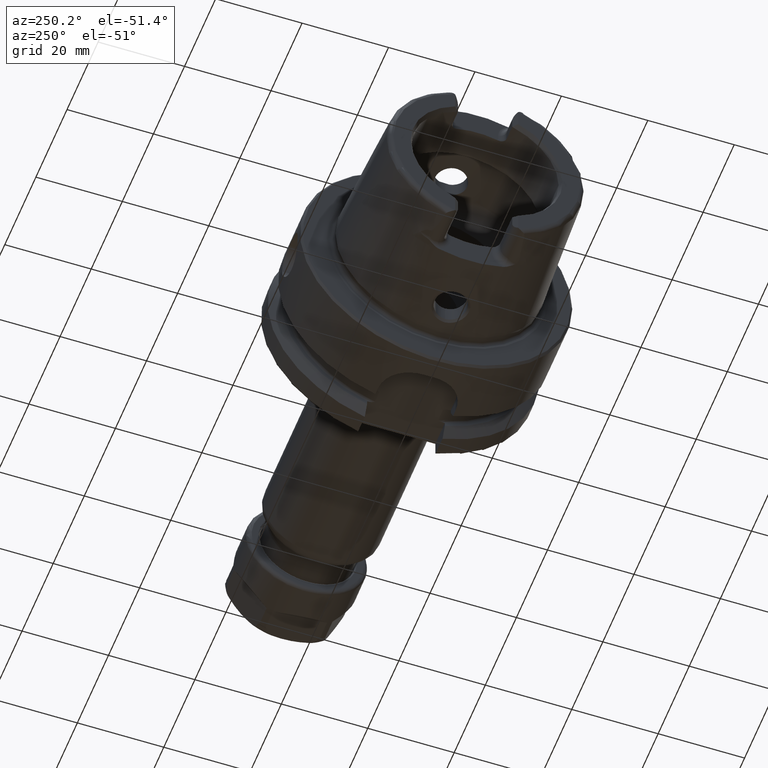
[diagram: clean part render]
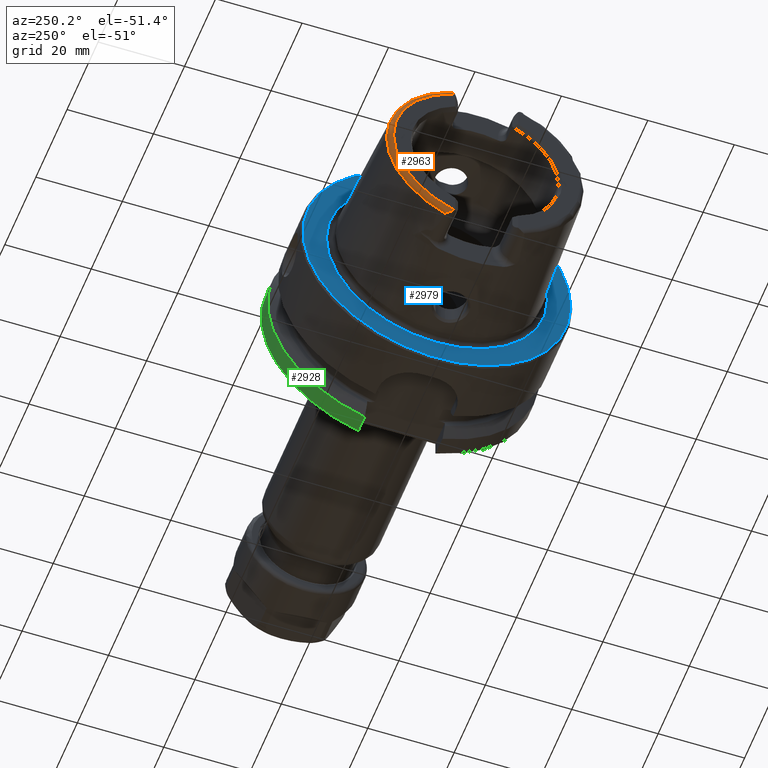
[diagram: same view with three faces highlighted in distinct colors, each labeled with its STEP entity id]
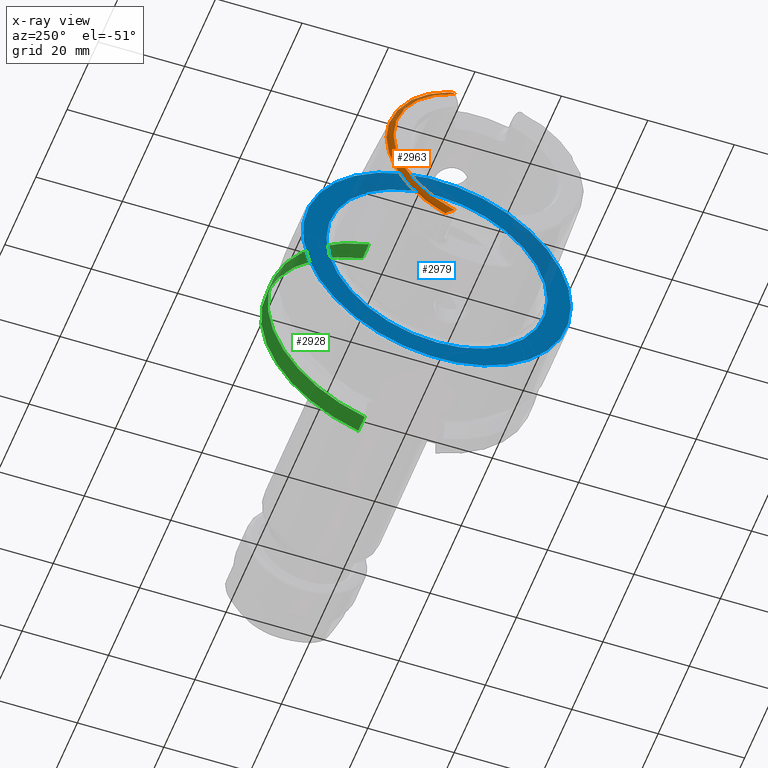
[diagram: x-ray of the same camera — body ghosted, the three highlighted faces saturated]
A machine part, auxiliary view with three faces highlighted in distinct colors.
The next image is the same camera in x-ray (body ghosted, the three faces saturated) — at least one of them is partly hidden behind the body in this view.
Their STEP definitions:

[orange] entity #2963 — the highlighted toroidal blend (fillet) surface has major radius 21.576 mm and minor (blend) radius 1.2 mm.
#64=B_SPLINE_CURVE_WITH_KNOTS('',3,(#4575,#4576,#4577,#4578,#4579,#4580,
#4581,#4582,#4583,#4584,#4585,#4586),.UNSPECIFIED.,.F.,.F.,(4,2,2,2,2,4),
(-0.439971245205478,-0.413787817992068,-0.386870723320619,-0.314205730694733,
-0.242063220501312,-0.191373987051965),.UNSPECIFIED.);
#69=B_SPLINE_CURVE_WITH_KNOTS('',3,(#4676,#4677,#4678,#4679,#4680,#4681,
#4682,#4683,#4684,#4685,#4686,#4687),.UNSPECIFIED.,.F.,.F.,(4,2,2,2,2,4),
(-0.196594494202377,-0.162015792380097,-0.0987584756003746,-0.0492121500493367,
-0.0201918504309682,-3.59409225206588E-5),.UNSPECIFIED.);
#238=TOROIDAL_SURFACE('',#3321,21.5760400159857,1.2);
#401=FACE_OUTER_BOUND('',#579,.T.);
#579=EDGE_LOOP('',(#2475,#2476,#2477,#2478));
#1012=CIRCLE('',#3188,22.7745368271334);
#1077=CIRCLE('',#3320,21.5760400159857);
#1208=VERTEX_POINT('',#4572);
#1209=VERTEX_POINT('',#4574);
#1228=VERTEX_POINT('',#4666);
#1229=VERTEX_POINT('',#4675);
#1526=EDGE_CURVE('',#1209,#1208,#64,.T.);
#1549=EDGE_CURVE('',#1229,#1228,#69,.T.);
#1567=EDGE_CURVE('',#1209,#1228,#1012,.T.);
#1746=EDGE_CURVE('',#1208,#1229,#1077,.T.);
#2475=ORIENTED_EDGE('',*,*,#1549,.T.);
#2476=ORIENTED_EDGE('',*,*,#1567,.F.);
#2477=ORIENTED_EDGE('',*,*,#1526,.T.);
#2478=ORIENTED_EDGE('',*,*,#1746,.T.);
#2963=ADVANCED_FACE('',(#401),#238,.T.);
#3188=AXIS2_PLACEMENT_3D('',#4904,#3700,#3701);
#3320=AXIS2_PLACEMENT_3D('',#5806,#4023,#4024);
#3321=AXIS2_PLACEMENT_3D('',#5807,#4025,#4026);
#3700=DIRECTION('center_axis',(1.,0.,0.));
#3701=DIRECTION('ref_axis',(0.,0.,-1.));
#4023=DIRECTION('center_axis',(1.,0.,0.));
#4024=DIRECTION('ref_axis',(0.,0.,-1.));
#4025=DIRECTION('center_axis',(1.,0.,0.));
#4026=DIRECTION('ref_axis',(0.,0.,-1.));
#4572=CARTESIAN_POINT('',(-32.,7.39118810947246,-20.2705658801576));
#4574=CARTESIAN_POINT('',(-30.8600449304182,9.1175788960984,-20.8698175067219));
#4575=CARTESIAN_POINT('Ctrl Pts',(-30.8600449304182,9.11757889609839,-20.8698175067219));
#4576=CARTESIAN_POINT('Ctrl Pts',(-30.9283482575805,9.10924589065498,-20.869723693404));
#4577=CARTESIAN_POINT('Ctrl Pts',(-30.993271833442,9.08711423752726,-20.869481166787));
#4578=CARTESIAN_POINT('Ctrl Pts',(-31.1175295394099,9.02410248673809,-20.8674243938042));
#4579=CARTESIAN_POINT('Ctrl Pts',(-31.1766323882079,8.98273168347476,-20.8654949507798));
#4580=CARTESIAN_POINT('Ctrl Pts',(-31.3771588963276,8.81568608992481,-20.853140478981));
#4581=CARTESIAN_POINT('Ctrl Pts',(-31.5206715121349,8.63879728066883,-20.8319176028095));
#4582=CARTESIAN_POINT('Ctrl Pts',(-31.7691415784724,8.23645855855542,-20.7290954164696));
#4583=CARTESIAN_POINT('Ctrl Pts',(-31.8687101576321,8.02133155327414,-20.6499424381211));
#4584=CARTESIAN_POINT('Ctrl Pts',(-31.9745830679216,7.66828298917771,-20.4650680358065));
#4585=CARTESIAN_POINT('Ctrl Pts',(-32.,7.52538170482901,-20.3740583042087));
#4586=CARTESIAN_POINT('Ctrl Pts',(-32.,7.39118810947247,-20.2705658801576));
#4666=CARTESIAN_POINT('',(-30.8600449304182,9.1175788960984,20.8698175067219));
#4675=CARTESIAN_POINT('',(-32.,7.39118810947246,20.2705658801576));
#4676=CARTESIAN_POINT('Ctrl Pts',(-32.,7.39118810947247,20.2705658801576));
#4677=CARTESIAN_POINT('Ctrl Pts',(-32.,7.5108721598535,20.3628682919178));
#4678=CARTESIAN_POINT('Ctrl Pts',(-31.9797330717779,7.63776168900947,20.4454948383081));
#4679=CARTESIAN_POINT('Ctrl Pts',(-31.8791506793963,8.00524977105305,20.646558514632));
#4680=CARTESIAN_POINT('Ctrl Pts',(-31.765597681806,8.24658605272637,20.7334672105939));
#4681=CARTESIAN_POINT('Ctrl Pts',(-31.5253369252513,8.62735746584638,20.8274140198604));
#4682=CARTESIAN_POINT('Ctrl Pts',(-31.4073954734027,8.77570244905025,20.847801807847));
#4683=CARTESIAN_POINT('Ctrl Pts',(-31.2163518404642,8.95387229883953,20.8640739602076));
#4684=CARTESIAN_POINT('Ctrl Pts',(-31.1366672867121,9.0150934584885,20.867161983441));
#4685=CARTESIAN_POINT('Ctrl Pts',(-30.990207154745,9.08815496121785,20.8694917701067));
#4686=CARTESIAN_POINT('Ctrl Pts',(-30.9267310903117,9.10944318505063,20.8697259145524));
#4687=CARTESIAN_POINT('Ctrl Pts',(-30.8600449304182,9.11757889609838,20.8698175067219));
#4904=CARTESIAN_POINT('Origin',(-30.8600449304182,0.,0.));
#5806=CARTESIAN_POINT('Origin',(-32.,0.,0.));
#5807=CARTESIAN_POINT('Origin',(-30.8,0.,0.));

[blue] entity #2979 — the highlighted planar face has unit normal (-1, 0, 0).
#156=FACE_BOUND('',#599,.T.);
#201=PLANE('',#3356);
#417=FACE_OUTER_BOUND('',#598,.T.);
#598=EDGE_LOOP('',(#2546));
#599=EDGE_LOOP('',(#2547));
#1096=CIRCLE('',#3355,25.5879092835167);
#1097=CIRCLE('',#3357,31.);
#1360=VERTEX_POINT('',#5858);
#1361=VERTEX_POINT('',#5862);
#1770=EDGE_CURVE('',#1360,#1360,#1096,.T.);
#1771=EDGE_CURVE('',#1361,#1361,#1097,.T.);
#2546=ORIENTED_EDGE('',*,*,#1771,.F.);
#2547=ORIENTED_EDGE('',*,*,#1770,.T.);
#2979=ADVANCED_FACE('',(#417,#156),#201,.T.);
#3355=AXIS2_PLACEMENT_3D('',#5860,#4098,#4099);
#3356=AXIS2_PLACEMENT_3D('',#5861,#4100,#4101);
#3357=AXIS2_PLACEMENT_3D('',#5863,#4102,#4103);
#4098=DIRECTION('center_axis',(1.,0.,0.));
#4099=DIRECTION('ref_axis',(0.,0.,-1.));
#4100=DIRECTION('center_axis',(-1.,0.,0.));
#4101=DIRECTION('ref_axis',(0.,0.,1.));
#4102=DIRECTION('center_axis',(1.,0.,0.));
#4103=DIRECTION('ref_axis',(0.,0.,-1.));
#5858=CARTESIAN_POINT('',(-3.55618312575245E-16,-25.5879092835167,-3.13361512009315E-15));
#5860=CARTESIAN_POINT('Origin',(0.,0.,0.));
#5861=CARTESIAN_POINT('Origin',(0.,31.,0.));
#5862=CARTESIAN_POINT('',(-5.89805981832114E-16,-31.,-3.7964050773568E-15));
#5863=CARTESIAN_POINT('Origin',(0.,0.,0.));

[green] entity #2928 — the highlighted cylindrical surface (partial cylindrical patch) has radius 31.5 mm, axis along (1, 0, 0).
#271=CYLINDRICAL_SURFACE('',#3256,31.5);
#366=FACE_OUTER_BOUND('',#543,.T.);
#543=EDGE_LOOP('',(#2281,#2282,#2283,#2284));
#726=LINE('',#5425,#879);
#740=LINE('',#5605,#893);
#879=VECTOR('',#3817,10.);
#893=VECTOR('',#3879,10.);
#1046=CIRCLE('',#3253,31.5);
#1048=CIRCLE('',#3257,31.5);
#1293=VERTEX_POINT('',#5401);
#1297=VERTEX_POINT('',#5421);
#1322=VERTEX_POINT('',#5588);
#1323=VERTEX_POINT('',#5603);
#1647=EDGE_CURVE('',#1293,#1297,#726,.T.);
#1683=EDGE_CURVE('',#1293,#1322,#1046,.T.);
#1686=EDGE_CURVE('',#1297,#1323,#1048,.T.);
#1687=EDGE_CURVE('',#1323,#1322,#740,.T.);
#2281=ORIENTED_EDGE('',*,*,#1647,.T.);
#2282=ORIENTED_EDGE('',*,*,#1686,.T.);
#2283=ORIENTED_EDGE('',*,*,#1687,.T.);
#2284=ORIENTED_EDGE('',*,*,#1683,.F.);
#2928=ADVANCED_FACE('',(#366),#271,.T.);
#3253=AXIS2_PLACEMENT_3D('',#5589,#3869,#3870);
#3256=AXIS2_PLACEMENT_3D('',#5602,#3875,#3876);
#3257=AXIS2_PLACEMENT_3D('',#5604,#3877,#3878);
#3817=DIRECTION('',(-1.,0.,0.));
#3869=DIRECTION('center_axis',(1.,0.,0.));
#3870=DIRECTION('ref_axis',(0.,0.,-1.));
#3875=DIRECTION('center_axis',(1.,0.,0.));
#3876=DIRECTION('ref_axis',(0.,1.,0.));
#3877=DIRECTION('center_axis',(1.,0.,0.));
#3878=DIRECTION('ref_axis',(0.,0.,-1.));
#3879=DIRECTION('',(1.,0.,0.));
#5401=CARTESIAN_POINT('',(25.5,9.,-30.1869176962472));
#5421=CARTESIAN_POINT('',(21.3774990747593,9.,-30.1869176962472));
#5425=CARTESIAN_POINT('',(23.4387495373797,9.,-30.1869176962472));
#5588=CARTESIAN_POINT('',(25.5,8.,30.4671954731642));
#5589=CARTESIAN_POINT('Origin',(25.5,0.,0.));
#5602=CARTESIAN_POINT('Origin',(23.4387495373797,0.,0.));
#5603=CARTESIAN_POINT('',(21.3774990747593,8.,30.4671954731642));
#5604=CARTESIAN_POINT('Origin',(21.3774990747593,0.,0.));
#5605=CARTESIAN_POINT('',(23.4387495373797,8.,30.4671954731642));